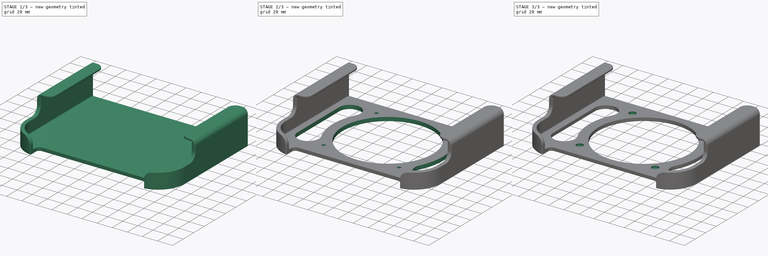
[diagram: build sequence overview — one tinted view per stage of 3, left to right]
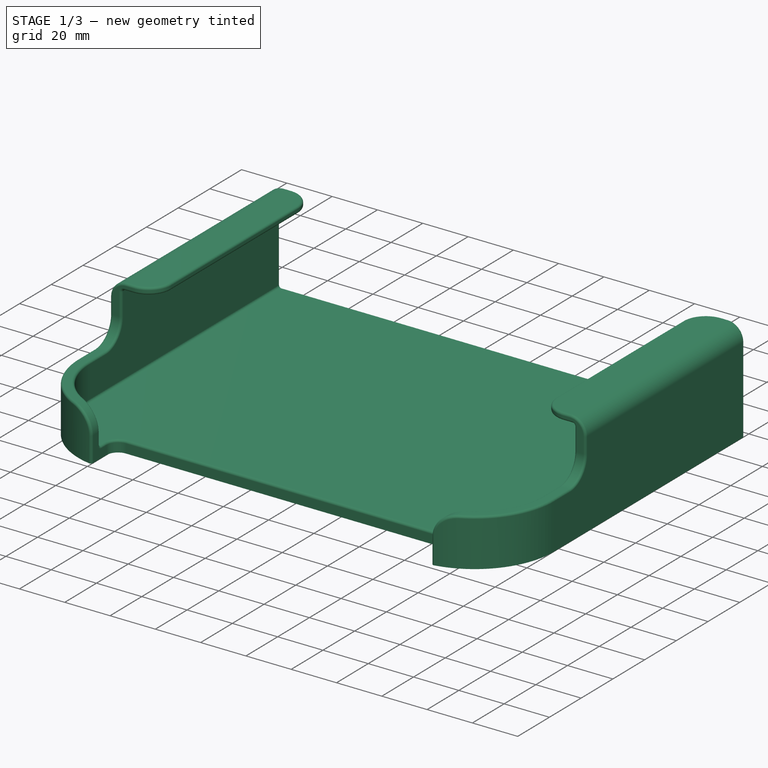
[diagram: stage 1 of 3 — iso view after this stage's code; geometry added in this stage tinted green]
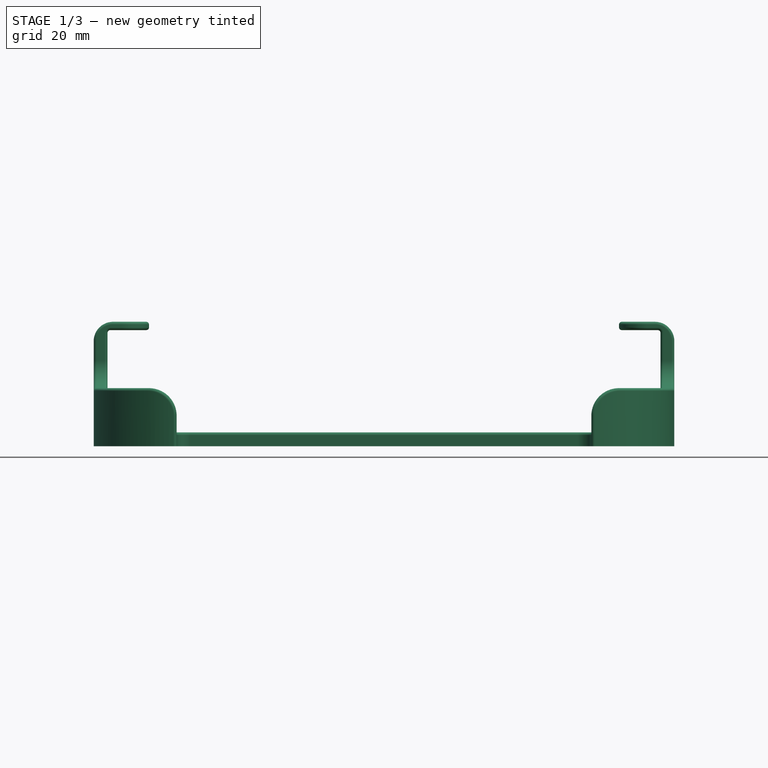
[diagram: stage 1 of 3 — front view after this stage's code; geometry added in this stage tinted green]
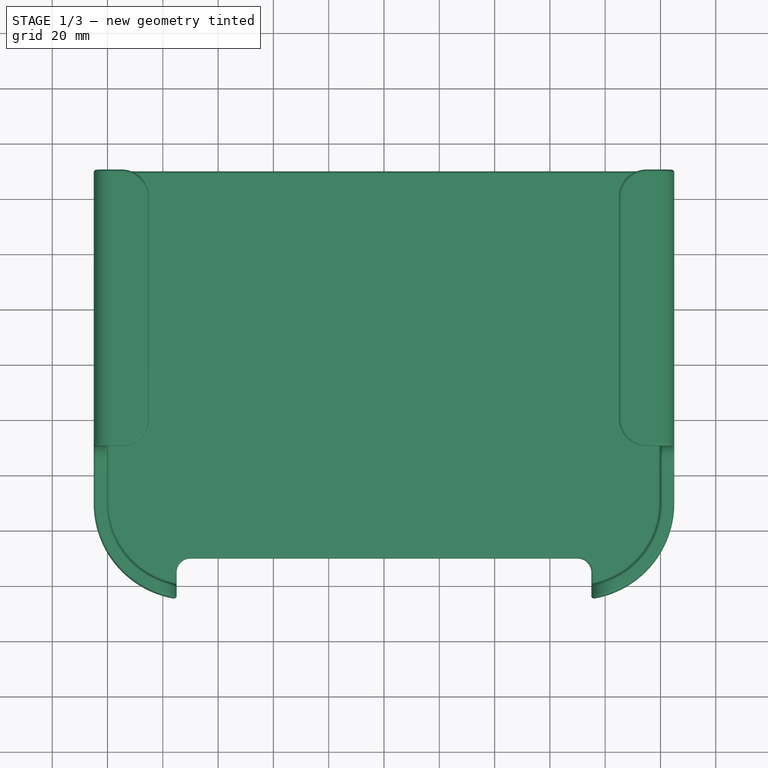
[diagram: stage 1 of 3 — top view after this stage's code; geometry added in this stage tinted green]
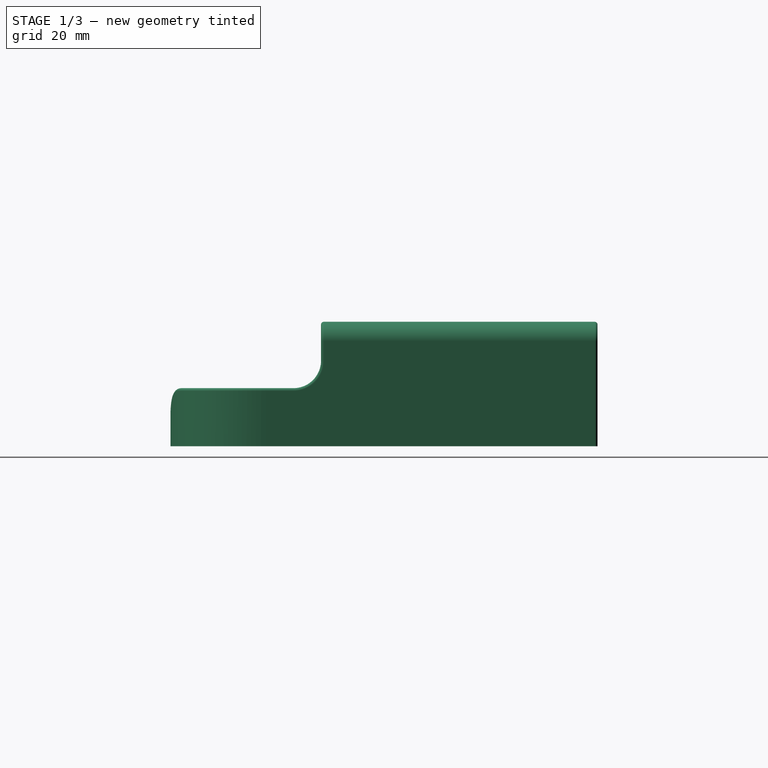
[diagram: stage 1 of 3 — right view after this stage's code; geometry added in this stage tinted green]
FCSTD DOCUMENT  (FreeCAD 0.22R35720 (Git))
Label: vesa frame
License: All rights reserved
LicenseURL: http://en.wikipedia.org/wiki/All_rights_reserved
objects: Sketcher::SketchObject×3, PartDesign::Pocket×2, Part::Feature×1, PartDesign::FeatureBase×1, PartDesign::Pad×1, PartDesign::Chamfer×1, PartDesign::Body×1
note: 14 computed .brp shape members not serialized (recipe doc carries the construction recipe); baked Part::Feature solids carry a one-line shape summary decoded from their .brp

FEATURE [Part::Feature] Part__Feature001  label="COMPOUND001"
  shape: bbox 215.8 x 155.3 x 45.58 mm, 167 faces (baked)
FEATURE [PartDesign::FeatureBase] BaseFeature
  BaseFeature = -> Part__Feature001
FEATURE [Sketcher::SketchObject] Sketch
  FullyConstrained = false
  MapMode = 5
  Support = -> [BaseFeature]
  sketch-geometry (4):
    g0: LineSegment StartX=-98.8253 StartY=45.1743 StartZ=0 EndX=-98.8253 EndY=-86.201 EndZ=0
    g1: LineSegment StartX=-98.8253 StartY=-86.201 StartZ=0 EndX=97.3806 EndY=-86.201 EndZ=0
    g2: LineSegment StartX=97.3806 StartY=-86.201 StartZ=0 EndX=97.3806 EndY=45.1743 EndZ=0
    g3: LineSegment StartX=97.3806 StartY=45.1743 StartZ=0 EndX=-98.8253 EndY=45.1743 EndZ=0
  constraints (8):
    c: Coincident(g0,g1)
    c: Coincident(g1,g2)
    c: Coincident(g2,g3)
    c: Coincident(g3,g0)
    c: Vertical(g0)
    c: Vertical(g2)
    c: Horizontal(g1)
    c: Horizontal(g3)
FEATURE [Sketcher::SketchObject] Sketch001
  FullyConstrained = false
  MapMode = 5
  Placement = pos=(0,0,-5) rot=(1,0,0;3.14159rad)
  sketch-geometry (22):
    g0: LineSegment StartX=-50 StartY=70 StartZ=0 EndX=-50 EndY=-30 EndZ=0
    g1: LineSegment StartX=-50 StartY=-30 StartZ=0 EndX=50 EndY=-30 EndZ=0
    g2: LineSegment StartX=50 StartY=-30 StartZ=0 EndX=50 EndY=70 EndZ=0
    g3: LineSegment StartX=50 StartY=70 StartZ=0 EndX=-50 EndY=70 EndZ=0
    g4: GeomPoint X=0 Y=90 Z=0
    g5: GeomPoint X=-6.58e-14 Y=-50 Z=0
    g6: GeomPoint X=-3.29e-14 Y=20 Z=0
    g7: Circle CenterX=-50 CenterY=70 CenterZ=0 NormalX=0 NormalY=0 NormalZ=1 AngleXU=0 Radius=2.2
    g8: Circle CenterX=50 CenterY=70 CenterZ=0 NormalX=0 NormalY=0 NormalZ=1 AngleXU=0 Radius=2.2
    g9: Circle CenterX=50 CenterY=-30 CenterZ=0 NormalX=0 NormalY=0 NormalZ=1 AngleXU=0 Radius=2.2
    g10: Circle CenterX=-50 CenterY=-30 CenterZ=0 NormalX=0 NormalY=0 NormalZ=1 AngleXU=0 Radius=2.2
    g11: Circle CenterX=-3.29e-14 CenterY=20 CenterZ=0 NormalX=0 NormalY=0 NormalZ=1 AngleXU=0 Radius=60
    g12: ArcOfCircle CenterX=-3.29e-14 CenterY=20 CenterZ=0 NormalX=0 NormalY=0 NormalZ=1 AngleXU=0 Radius=73 StartAngle=5.81454 EndAngle=6.75183
    g13: ArcOfCircle CenterX=-3.29e-14 CenterY=20 CenterZ=0 NormalX=0 NormalY=0 NormalZ=1 AngleXU=0 Radius=73 StartAngle=2.67294 EndAngle=3.61024
    g14: LineSegment StartX=-92 StartY=59.3871 StartZ=0 EndX=-92 EndY=-19.3871 EndZ=0
    g15: LineSegment StartX=92 StartY=59.3871 StartZ=0 EndX=92 EndY=-19.3871 EndZ=0
    g16: ArcOfCircle CenterX=-77.799 CenterY=59.3871 CenterZ=0 NormalX=0 NormalY=0 NormalZ=1 AngleXU=0 Radius=14.201 StartAngle=5.81454 EndAngle=9.42478
    g17: ArcOfCircle CenterX=-77.799 CenterY=-19.3871 CenterZ=0 NormalX=0 NormalY=0 NormalZ=1 AngleXU=0 Radius=14.201 StartAngle=3.14159 EndAngle=6.75183
    g18: ArcOfCircle CenterX=77.799 CenterY=-19.3871 CenterZ=0 NormalX=0 NormalY=0 NormalZ=1 AngleXU=0 Radius=14.201 StartAngle=2.67294 EndAngle=6.28319
    g19: ArcOfCircle CenterX=77.799 CenterY=59.3871 CenterZ=0 NormalX=0 NormalY=0 NormalZ=1 AngleXU=0 Radius=14.201 StartAngle=1e-16 EndAngle=3.61024
    g20: GeomPoint X=-92 Y=20 Z=0
    g21: GeomPoint X=92 Y=20 Z=0
  constraints (41):
    c: Coincident(g0,g1)
    c: Coincident(g1,g2)
    c: Coincident(g2,g3)
    c: Coincident(g3,g0)
    c: Vertical(g0)
    c: Horizontal(g3)
    c: Equal(g2,g1)
    c: Symmetric(g1,g0,g-2)
    c: PointOnObject(g4,g-2)
    c: Symmetric(g0,g2,g6)
    c: Symmetric(g4,g5,g6)
    c: DistanceX(g1,g1) = 100
    c: Coincident(g7,g0)
    c: Coincident(g8,g2)
    c: Coincident(g9,g1)
    c: Coincident(g10,g0)
    c: Equal(g7,g8)
    c: Equal(g7,g9)
    c: Equal(g7,g10)
    c: Diameter(g7) = 4.4
    c: Coincident(g11,g6)
    c: Diameter(g11) = 120
    c: Coincident(g12,g11)
    c: Coincident(g13,g11)
    c: Vertical(g14)
    c: Symmetric(g15,g14,g-2)
    c: Symmetric(g15,g14,g-2)
    c: Symmetric(g13,g12,g-2)
    c: Symmetric(g15,g15,g21)
    c: Symmetric(g14,g14,g20)
    c: Horizontal(g20,g11)
    c: Radius(g13) = 73
    c: Tangent(g16,g13) = 1.5708
    c: Tangent(g17,g13) = 1.5708
    c: Tangent(g18,g12) = 1.5708
    c: Tangent(g19,g12) = 1.5708
    c: Tangent(g16,g14) = -1.5708
    c: Tangent(g17,g14) = -1.5708
    c: Tangent(g18,g15) = 1.5708
    c: Tangent(g19,g15) = 1.5708
    c: DistanceX(g14,g-1) = 92
FEATURE [PartDesign::Pad] Pad
  BaseFeature = -> BaseFeature
  Direction = (0,0,1)
  Length = 10
  Length2 = 10
  Profile = -> Sketch
  ReferenceAxis = -> Sketch [N_Axis]
  Refine = true
  Type = 3
  UpToFace = -> BaseFeature [Face14]
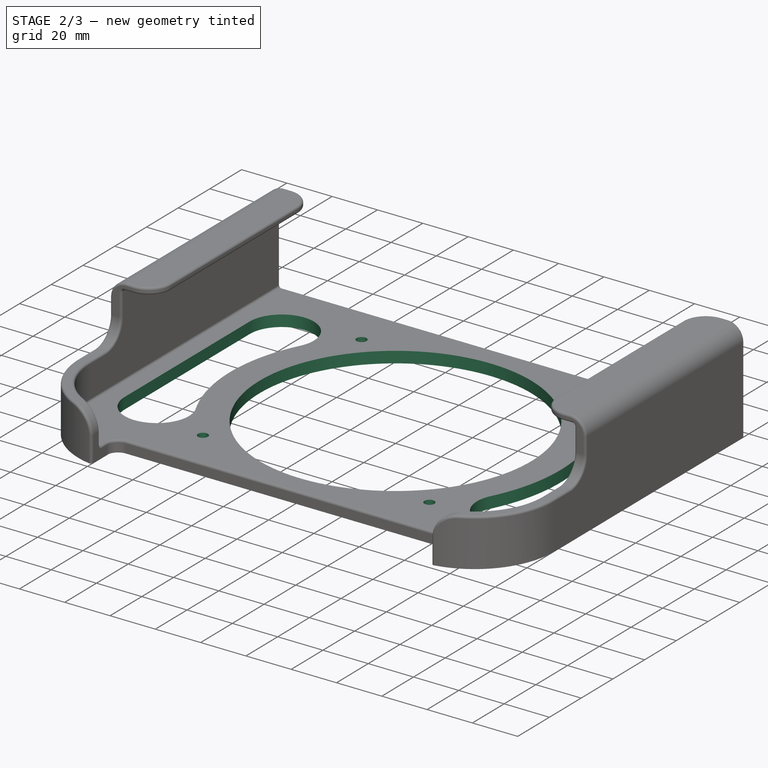
[diagram: stage 2 of 3 — iso view after this stage's code; geometry added in this stage tinted green]
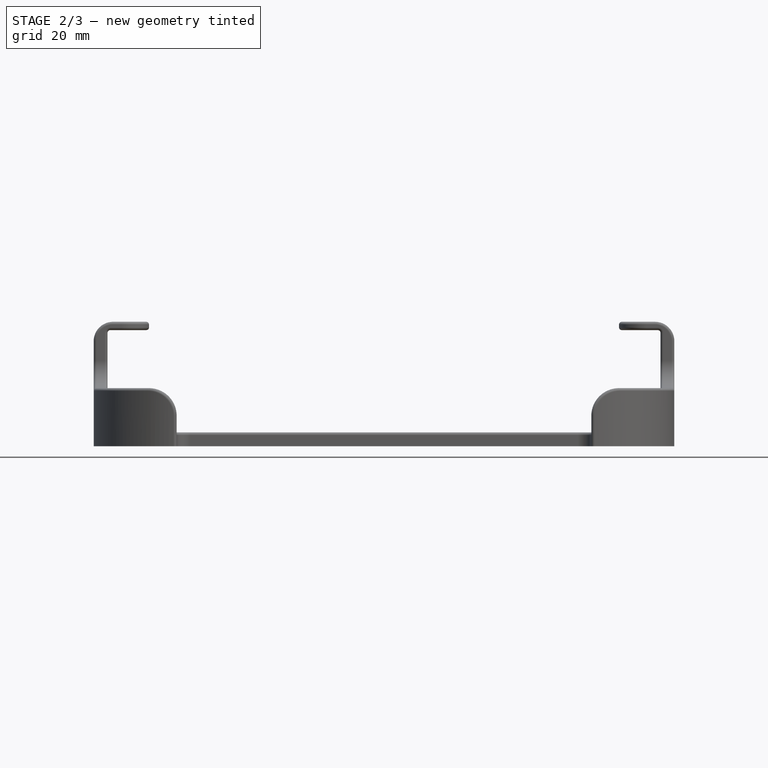
[diagram: stage 2 of 3 — front view after this stage's code; geometry added in this stage tinted green]
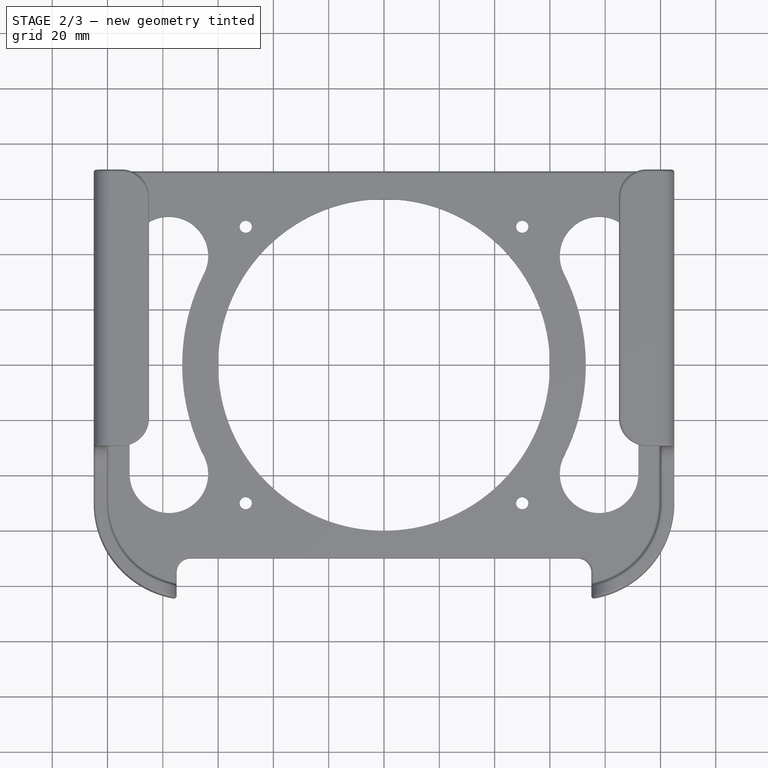
[diagram: stage 2 of 3 — top view after this stage's code; geometry added in this stage tinted green]
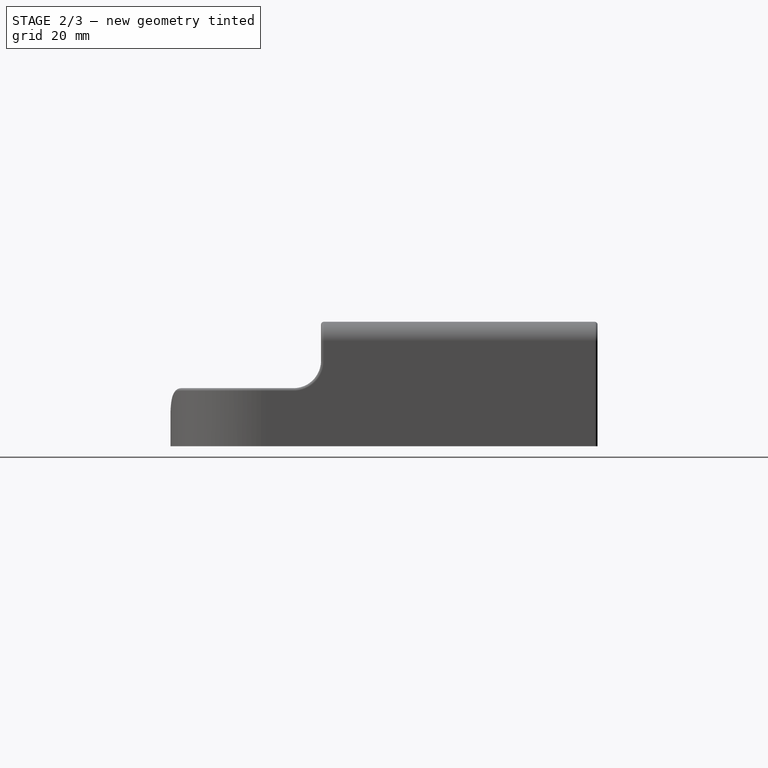
[diagram: stage 2 of 3 — right view after this stage's code; geometry added in this stage tinted green]
FEATURE [PartDesign::Pocket] Pocket
  BaseFeature = -> Pad
  Direction = (0,0,1)
  Length = 5
  Length2 = 5
  Profile = -> Sketch001
  ReferenceAxis = -> Sketch001 [N_Axis]
  Type = 0
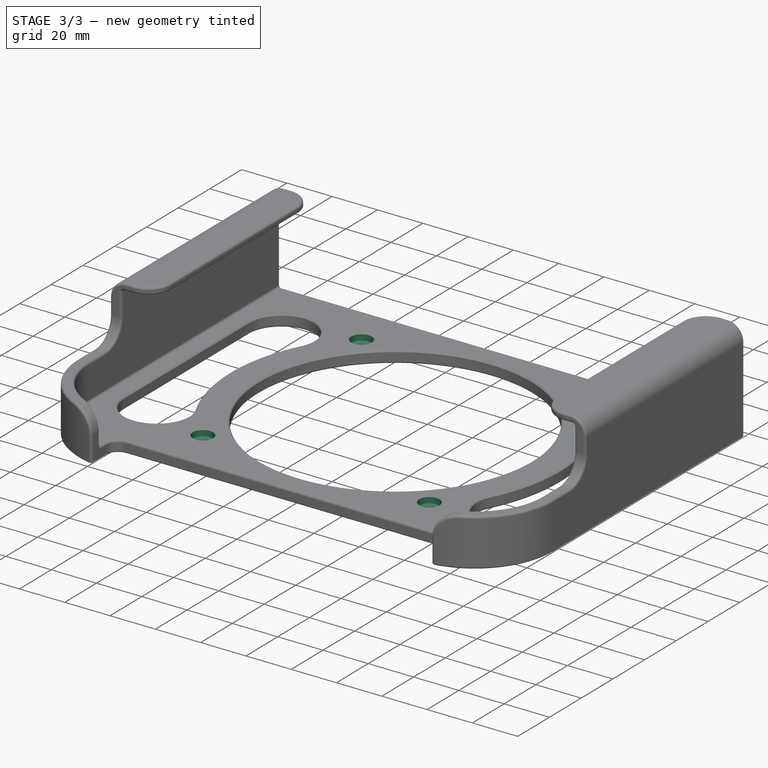
[diagram: stage 3 of 3 — iso view after this stage's code; geometry added in this stage tinted green]
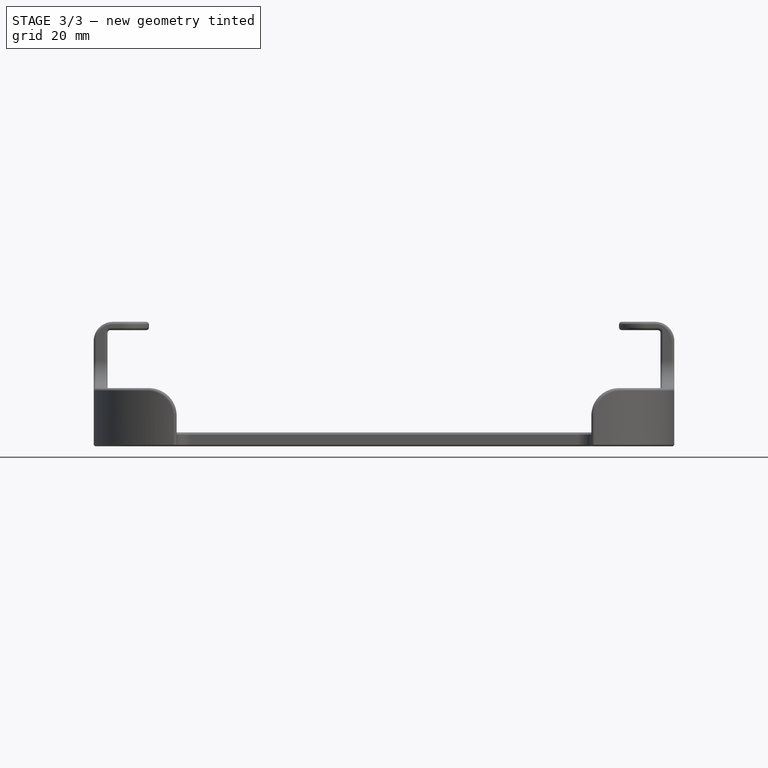
[diagram: stage 3 of 3 — front view after this stage's code; geometry added in this stage tinted green]
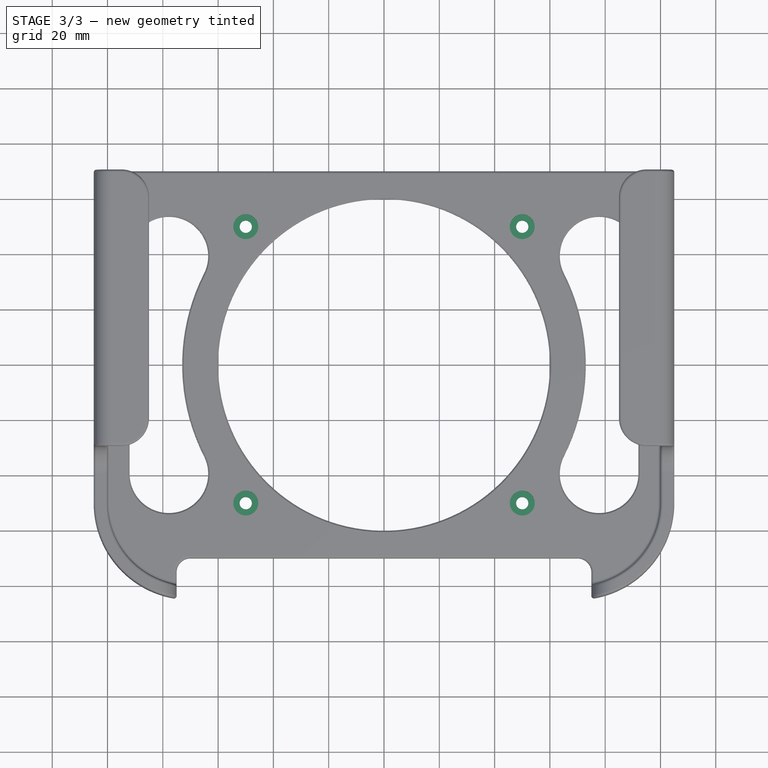
[diagram: stage 3 of 3 — top view after this stage's code; geometry added in this stage tinted green]
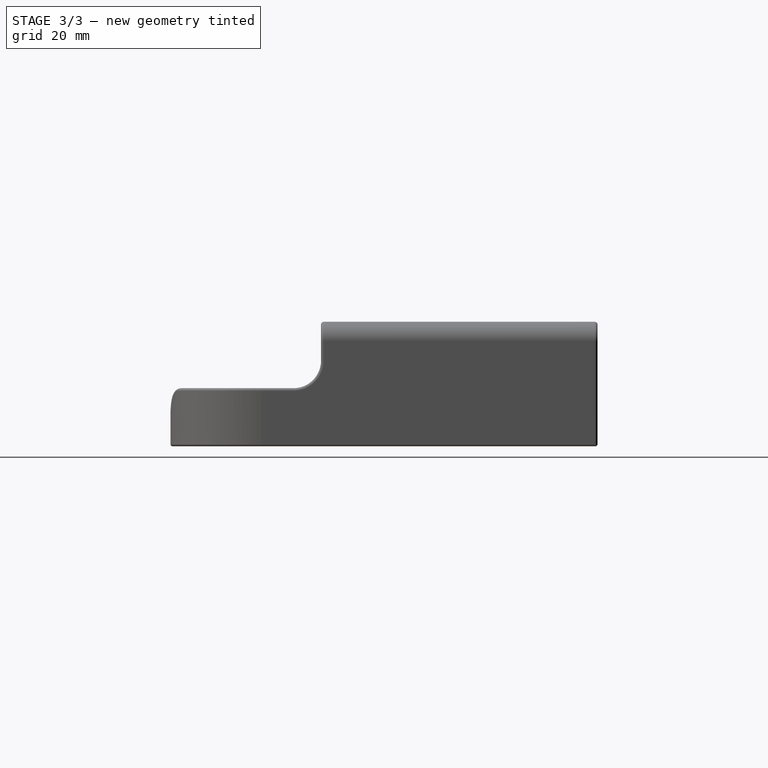
[diagram: stage 3 of 3 — right view after this stage's code; geometry added in this stage tinted green]
FEATURE [Sketcher::SketchObject] Sketch002
  ExternalGeometry = -> [Pocket]
  FullyConstrained = true
  MapMode = 5
  Support = -> [Pocket]
  sketch-geometry (4):
    g0: Circle CenterX=-50 CenterY=-70 CenterZ=0 NormalX=0 NormalY=0 NormalZ=1 AngleXU=0 Radius=4.5
    g1: Circle CenterX=50 CenterY=-70 CenterZ=0 NormalX=0 NormalY=0 NormalZ=1 AngleXU=0 Radius=4.5
    g2: Circle CenterX=50 CenterY=30 CenterZ=0 NormalX=0 NormalY=0 NormalZ=1 AngleXU=0 Radius=4.5
    g3: Circle CenterX=-50 CenterY=30 CenterZ=0 NormalX=0 NormalY=0 NormalZ=1 AngleXU=0 Radius=4.5
  constraints (12):
    c: Coincident(g0,g-4)
    c: Coincident(g1,g-5)
    c: Coincident(g2,g-6)
    c: Coincident(g3,g-3)
    c: Diameter(g-6) = 4.4
    c: Diameter(g-5) = 4.4
    c: Diameter(g-4) = 4.4
    c: Diameter(g-3) = 4.4
    c: Equal(g0,g1)
    c: Equal(g0,g2)
    c: Equal(g0,g3)
    c: Diameter(g0) = 9
FEATURE [PartDesign::Pocket] Pocket001
  BaseFeature = -> Pocket
  Direction = (0,0,-1)
  Length = 2.5
  Length2 = 5
  Profile = -> Sketch002
  ReferenceAxis = -> Sketch002 [N_Axis]
  Type = 0
FEATURE [PartDesign::Chamfer] Chamfer
  Angle = 45
  Base = -> Pocket001 [Edge129,Edge134,Edge142,Edge48,Edge37,Edge36,Edge43,Edge39,Edge47,Edge3,Edge35]
  BaseFeature = -> Pocket001
  ChamferType = 0
  FlipDirection = false
  Size = 0.5
  Size2 = 1
  SupportTransform = false
  UseAllEdges = false
FEATURE [PartDesign::Body] Body  label="vesa mount mac mini frame"
  BaseFeature = -> Part__Feature001
  Group = -> [BaseFeature,Sketch,Sketch001,Pad,Pocket,Sketch002,Pocket001,Chamfer]
  Origin = -> Origin
  Tip = -> Chamfer
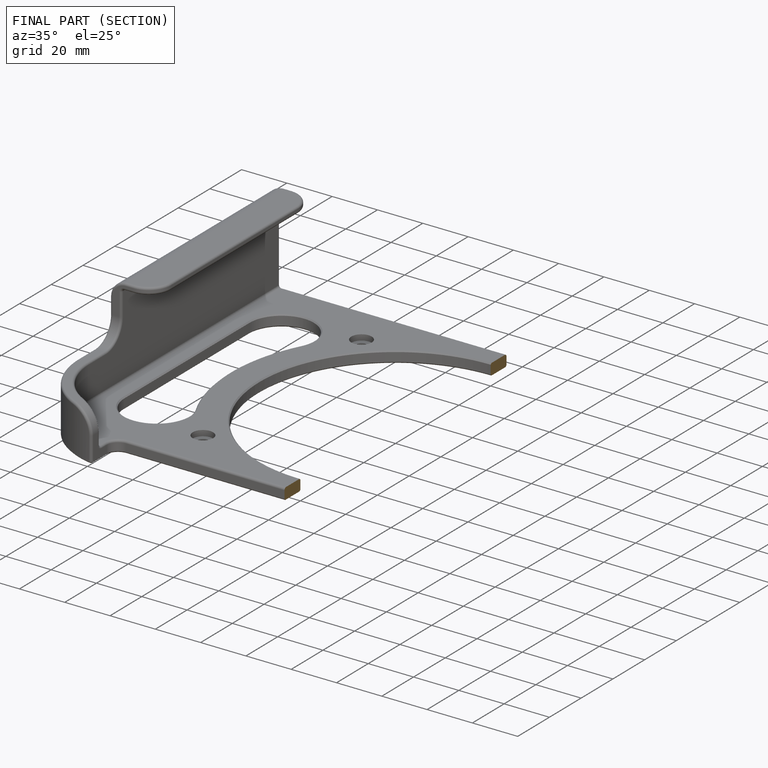
[diagram: finished part — half-section view (interior)]
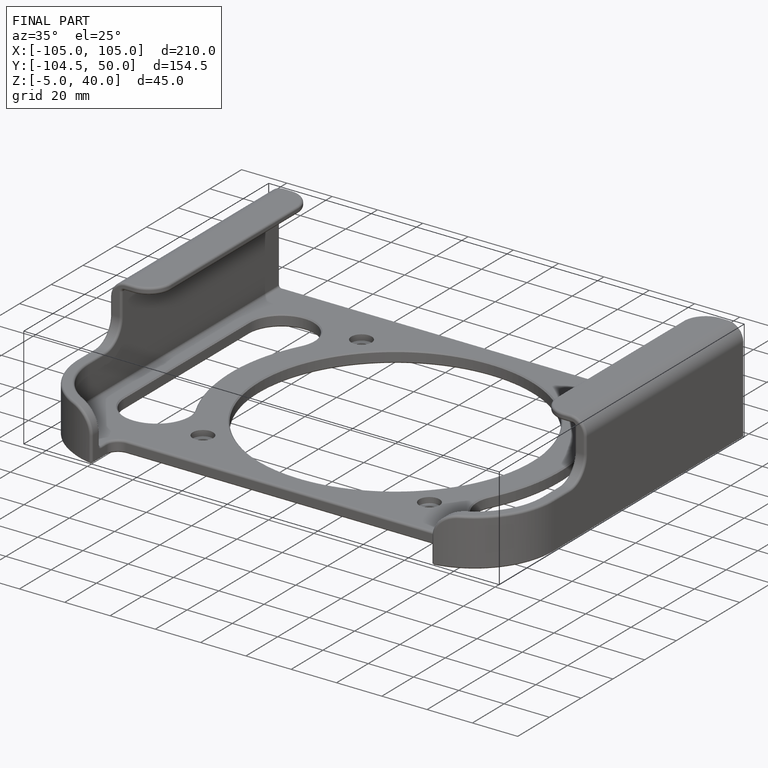
[diagram: finished part — iso view with bounding-box wireframe]
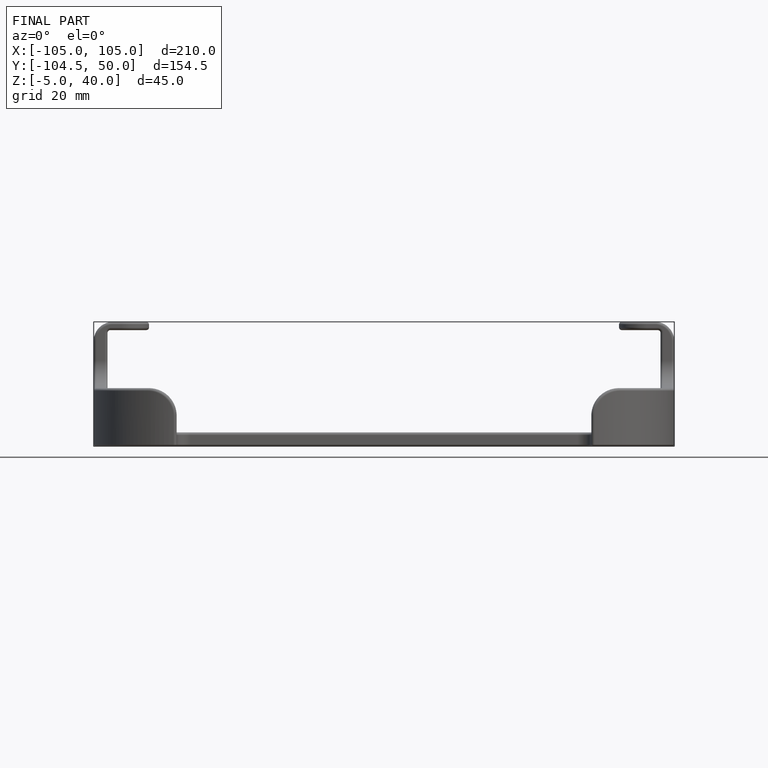
[diagram: finished part — front view with bounding-box wireframe]
